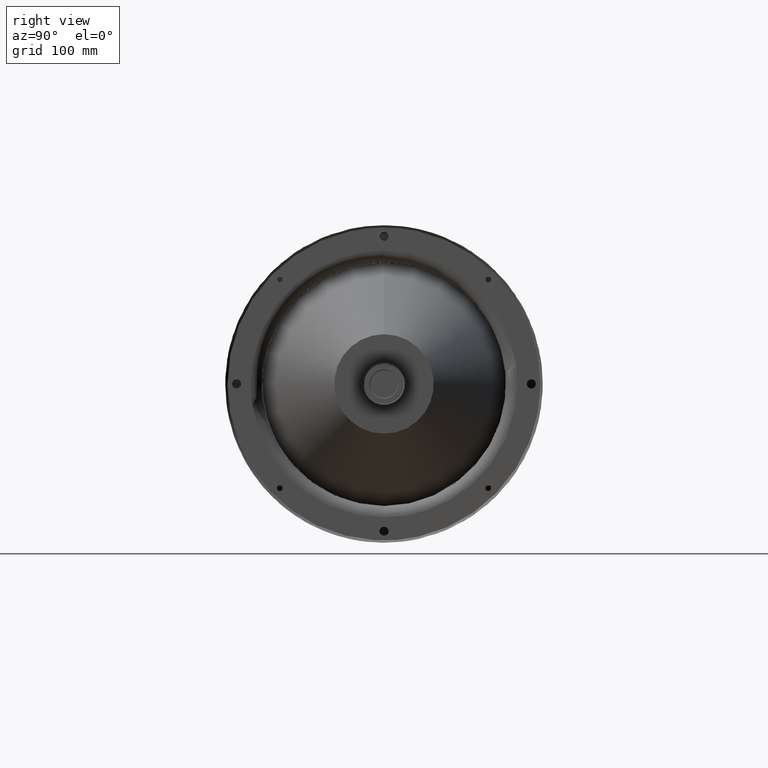
[diagram: clean part render]
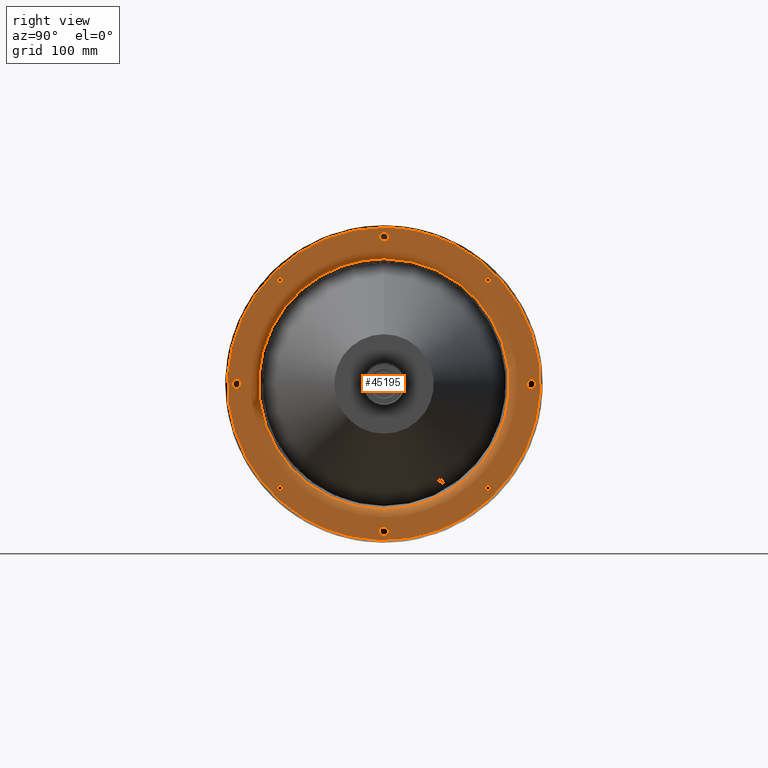
[diagram: same view with one face highlighted and labeled with its STEP entity id]
A machine part, right view. The second image highlights one B-rep face of the part: STEP entity #45195.
In plain terms, the highlighted planar face has unit normal (1, 0, 0).
Its self-contained STEP definition (entity closure, byte-faithful):
#154 = CARTESIAN_POINT ( 'NONE',  ( 190.0000000026300313, -0.5235987755984063963, -125.9999999999998863 ) ) ;
#235 = CARTESIAN_POINT ( 'NONE',  ( 190.0000000026300313, 92.57825126489817080, 94.35881324567083084 ) ) ;
#287 = CARTESIAN_POINT ( 'NONE',  ( 190.0000000026300313, -1.046991537437303332, -133.8958907066733843 ) ) ;
#417 = CARTESIAN_POINT ( 'NONE',  ( 190.0000000026300029, 125.9999999999998863, -0.5235987755983468883 ) ) ;
#424 = CARTESIAN_POINT ( 'NONE',  ( 190.0000000026300313, -131.0469915374370657, 3.895890706673525550 ) ) ;
#764 = EDGE_CURVE ( 'NONE', #3801, #38998, #8824, .T. ) ;
#931 = CARTESIAN_POINT ( 'NONE',  ( 190.0000000026300597, 3.895890706673261761, -128.9530084625629343 ) ) ;
#943 = CARTESIAN_POINT ( 'NONE',  ( 190.0000000013150157, -91.92388155396861293, 89.42388155400007577 ) ) ;
#1188 = CARTESIAN_POINT ( 'NONE',  ( 190.0000000026299745, -133.1986673695929255, -2.458186879899536770 ) ) ;
#1440 = VERTEX_POINT ( 'NONE', #14874 ) ;
#1486 = CARTESIAN_POINT ( 'NONE',  ( 190.0000000026300597, -93.46024835396234209, -89.92471444802384895 ) ) ;
#1569 = CARTESIAN_POINT ( 'NONE',  ( 190.0000000026300597, 89.73941558311437916, -90.66483410307269253 ) ) ;
#1647 = B_SPLINE_CURVE_WITH_KNOTS ( 'NONE', 3,
 ( #37824, #24832, #49502, #48475, #29771, #44598, #40688, #44853, #37051, #25083, #9279, #5386, #21200, #1486, #17298, #49764, #3505, #14931 ),
 .UNSPECIFIED., .F., .F.,
 ( 4, 2, 2, 2, 2, 2, 2, 2, 4 ),
 ( 0.000000000000000000, 0.06250000000000000000, 0.1250000000000000000, 0.1875000000000000000, 0.2500000000000000000, 0.3125000000000000000, 0.3750000000000000000, 0.4375000000000000000, 0.5000000000000000000 ),
 .UNSPECIFIED. ) ;
#1752 = CARTESIAN_POINT ( 'NONE',  ( 190.0000000026300313, -89.48894986232112103, -92.57825126486747536 ) ) ;
#1822 = CARTESIAN_POINT ( 'NONE',  ( 190.0000000026300313, 89.73941558311433653, -93.18292900492720321 ) ) ;
#1976 = CARTESIAN_POINT ( 'NONE',  ( 189.9999999990356798, -8.395799857379225628, 138.0000000009651444 ) ) ;
#1988 = CARTESIAN_POINT ( 'NONE',  ( 190.0000000026300597, 2.458186879899785016, 126.8013326304070745 ) ) ;
#2010 = CARTESIAN_POINT ( 'NONE',  ( 189.9999999990363051, 41.18304573997202311, -132.0209649742193392 ) ) ;
#2299 = CARTESIAN_POINT ( 'NONE',  ( 190.0000000002042384, 99.32104212800834375, -48.96820830360432808 ) ) ;
#2342 = CARTESIAN_POINT ( 'NONE',  ( 189.9999999990348840, -57.10609751822838831, 125.9102183373153281 ) ) ;
#2368 = EDGE_LOOP ( 'NONE', ( #47474, #19670 ) ) ;
#2494 = CARTESIAN_POINT ( 'NONE',  ( 190.0000000000339639, -48.96820830366510791, 99.32104212776881980 ) ) ;
#2549 = CARTESIAN_POINT ( 'NONE',  ( 190.0000000000753175, 14.46423734553270357, -109.7877072893656702 ) ) ;
#2589 = CARTESIAN_POINT ( 'NONE',  ( 190.0000000000000000, -140.1365520239999967, 0.000000000000000000 ) ) ;
#2749 = CARTESIAN_POINT ( 'NONE',  ( 189.9999999995181668, 30.29268456685085553, 134.6341536318181227 ) ) ;
#2841 = FACE_BOUND ( 'NONE', #9662, .T. ) ;
#2927 = ORIENTED_EDGE ( 'NONE', *, *, #27229, .F. ) ;
#3085 = EDGE_CURVE ( 'NONE', #46819, #8451, #21631, .T. ) ;
#3107 = CARTESIAN_POINT ( 'NONE',  ( 190.0000000026300313, 1.046991537437362618, 133.8958907066733843 ) ) ;
#3235 = CARTESIAN_POINT ( 'NONE',  ( 190.0000000026300029, 134.0000000000001137, 0.5235987755980997527 ) ) ;
#3260 = CARTESIAN_POINT ( 'NONE',  ( 190.0000000026300597, 3.198667369592710585, -127.5418131201003007 ) ) ;
#3505 = CARTESIAN_POINT ( 'NONE',  ( 190.0000000026300597, -92.25113078878031558, -89.42388155400412586 ) ) ;
#3583 = CARTESIAN_POINT ( 'NONE',  ( 190.0000000026300597, -94.42388155400405481, 92.25113078871761729 ) ) ;
#3703 = CARTESIAN_POINT ( 'NONE',  ( 190.0000000026300313, 89.73941558311435074, 90.66483410307270674 ) ) ;
#3801 = VERTEX_POINT ( 'NONE', #50806 ) ;
#3898 = CARTESIAN_POINT ( 'NONE',  ( 190.0000000026300313, -89.48894986232103577, 91.26951184313247722 ) ) ;
#4382 = CARTESIAN_POINT ( 'NONE',  ( 190.0000000026300313, 93.92304865999552987, 90.38751475406273528 ) ) ;
#4571 = B_SPLINE_CURVE_WITH_KNOTS ( 'NONE', 3,
 ( #45379, #34189, #50273, #25613, #42223, #10060, #2010, #5655, #30280, #14681, #10305, #18072, #46375, #26383, #41728, #10553, #17571, #49511, #30532, #6417, #37832, #29778, #22220, #13924, #50019, #37326, #6664, #22465, #5914, #10805, #41211, #21464, #38324, #2749 ),
 .UNSPECIFIED., .F., .F.,
 ( 4, 2, 2, 2, 2, 2, 2, 2, 2, 2, 2, 2, 2, 2, 2, 2, 4 ),
 ( 0.000000000000000000, 0.05838684663237411754, 0.1167736932647482351, 0.1751605398971223526, 0.2335473865294964702, 0.2919342331618705599, 0.3503210797942447052, 0.4087079264266188505, 0.4670947730589928293, 0.5254816196913669746, 0.5838684663237410088, 0.6422553129561151541, 0.7006421595884892994, 0.7590290062208634447, 0.8174158528532375900, 0.8758026994856116243, 0.9341895461179856586 ),
 .UNSPECIFIED. ) ;
#4580 = CARTESIAN_POINT ( 'NONE',  ( 190.0000000026300597, 92.25113078874889538, -94.42388155400000471 ) ) ;
#4822 = CARTESIAN_POINT ( 'NONE',  ( 190.0000000026299745, 126.1041092933266299, -1.046991537437186315 ) ) ;
#4879 = CARTESIAN_POINT ( 'NONE',  ( 190.0000000026300597, -90.38751475403766733, -93.92304865997596153 ) ) ;
#5386 = CARTESIAN_POINT ( 'NONE',  ( 190.0000000026300597, -94.10834752490136168, -90.66483410310017632 ) ) ;
#5655 = CARTESIAN_POINT ( 'NONE',  ( 189.9999999990365893, 58.03951171385765662, -125.5268637748970235 ) ) ;
#5669 = ORIENTED_EDGE ( 'NONE', *, *, #23450, .F. ) ;
#5746 = CARTESIAN_POINT ( 'NONE',  ( 189.9999999990336619, -126.5235801930850954, 55.73394935437598008 ) ) ;
#5879 = B_SPLINE_CURVE_WITH_KNOTS ( 'NONE', 3,
 ( #35988, #25037, #21150, #44031, #8469, #1188, #8732, #40641, #17000, #20384, #20646, #12846, #24006, #40127, #8206, #424, #24271, #24532 ),
 .UNSPECIFIED., .F., .F.,
 ( 4, 2, 2, 2, 2, 2, 2, 2, 4 ),
 ( 0.5000000000000000000, 0.5625000000000000000, 0.6250000000000000000, 0.6875000000000000000, 0.7500000000000000000, 0.8125000000000000000, 0.8750000000000000000, 0.9375000000000000000, 1.000000000000000000 ),
 .UNSPECIFIED. ) ;
#5904 = CARTESIAN_POINT ( 'NONE',  ( 190.0000000000633804, -28.65072382026234976, 106.9658396797609186 ) ) ;
#5914 = CARTESIAN_POINT ( 'NONE',  ( 189.9999999990372146, 86.89134624462411693, 107.5893693491208012 ) ) ;
#6003 = CARTESIAN_POINT ( 'NONE',  ( 189.9999999990336619, -121.4851425328199639, -65.99886059086483669 ) ) ;
#6155 = VERTEX_POINT ( 'NONE', #48514 ) ;
#6156 = CARTESIAN_POINT ( 'NONE',  ( 190.0000000000171383, -28.65072382004570883, -106.9658396798763675 ) ) ;
#6172 = VERTEX_POINT ( 'NONE', #41250 ) ;
#6209 = CARTESIAN_POINT ( 'NONE',  ( 190.0000000002260094, 109.7877072894778792, -14.46423734522748461 ) ) ;
#6417 = CARTESIAN_POINT ( 'NONE',  ( 189.9999999990380388, 138.1824597774091501, 5.584465866039221460 ) ) ;
#6459 = CARTESIAN_POINT ( 'NONE',  ( 190.0000000001846558, 87.85939262696450669, -67.40387200360369491 ) ) ;
#6498 = DIRECTION ( 'NONE',  ( 0.000000000000000000, 1.000000000000000000, 0.000000000000000000 ) ) ;
#6646 = CARTESIAN_POINT ( 'NONE',  ( 190.0000000026300597, -2.014475921483613430, 126.5048544465829679 ) ) ;
#6664 = CARTESIAN_POINT ( 'NONE',  ( 189.9999999990375841, 106.2113981029858962, 88.57040906619769771 ) ) ;
#6711 = CARTESIAN_POINT ( 'NONE',  ( 190.0000000001505782, 35.60483024903621185, 104.8563345572075889 ) ) ;
#6904 = CARTESIAN_POINT ( 'NONE',  ( 190.0000000000245564, -55.37714949368555750, 95.89539169204081759 ) ) ;
#7055 = CARTESIAN_POINT ( 'NONE',  ( 190.0000000026300597, -3.895890706673511783, -131.0469915374371794 ) ) ;
#7079 = CARTESIAN_POINT ( 'NONE',  ( 190.0000000026299745, -126.5048544465829679, -2.014475921483613430 ) ) ;
#7166 = CARTESIAN_POINT ( 'NONE',  ( 190.0000000026299745, -3.495145553417244422, -127.9855240785162920 ) ) ;
#7257 = EDGE_LOOP ( 'NONE', ( #33289, #15383 ) ) ;
#7263 = FACE_OUTER_BOUND ( 'NONE', #31714, .T. ) ;
#7497 = CARTESIAN_POINT ( 'NONE',  ( 190.0000000026300313, -93.46024835391216357, 89.92471444798540858 ) ) ;
#7594 = CARTESIAN_POINT ( 'NONE',  ( 190.0000000026300029, -126.5048544465828542, 2.014475921483701359 ) ) ;
#7613 = CARTESIAN_POINT ( 'NONE',  ( 190.0000000026299745, 90.66483410307276358, 89.73941558311427968 ) ) ;
#7763 = CARTESIAN_POINT ( 'NONE',  ( 190.0000000026300313, 93.46024835393727415, 93.92304865999551566 ) ) ;
#7862 = ORIENTED_EDGE ( 'NONE', *, *, #47874, .F. ) ;
#7864 = CARTESIAN_POINT ( 'NONE',  ( 190.0000000026300313, 90.66483410307269253, 94.10834752488564448 ) ) ;
#7909 = CARTESIAN_POINT ( 'NONE',  ( 189.9999999995175131, -3.162488086180769904E-13, 138.0000000009650307 ) ) ;
#7915 = CARTESIAN_POINT ( 'NONE',  ( 190.0000000026299176, 130.5235987755983729, 3.999999999999984457 ) ) ;
#7935 = CARTESIAN_POINT ( 'NONE',  ( 190.0000000026300597, -2.458186879899831645, -126.8013326304071882 ) ) ;
#7941 = CARTESIAN_POINT ( 'NONE',  ( 190.0000000026299745, 126.8013326304070745, -2.458186879899785016 ) ) ;
#8019 = CARTESIAN_POINT ( 'NONE',  ( 190.0000000026299460, 92.25113078874886696, 94.42388155400003313 ) ) ;
#8126 = ORIENTED_EDGE ( 'NONE', *, *, #9842, .F. ) ;
#8200 = CARTESIAN_POINT ( 'NONE',  ( 190.0000000026300029, 126.5048544465828542, -2.014475921483701359 ) ) ;
#8206 = CARTESIAN_POINT ( 'NONE',  ( 190.0000000026300029, -132.0144759214836085, 3.495145553417305706 ) ) ;
#8270 = AXIS2_PLACEMENT_3D ( 'NONE', #2589, #45964, #6498 ) ;
#8278 = CARTESIAN_POINT ( 'NONE',  ( 190.0000000026299745, 93.18292900492723163, 94.10834752488568711 ) ) ;
#8433 = CARTESIAN_POINT ( 'NONE',  ( 190.0000000013150157, 130.0000000000000568, 3.999999999999998224 ) ) ;
#8451 = VERTEX_POINT ( 'NONE', #9526 ) ;
#8469 = CARTESIAN_POINT ( 'NONE',  ( 190.0000000026300029, -132.4581868798997846, -3.198667369592636422 ) ) ;
#8662 = EDGE_CURVE ( 'NONE', #42163, #30939, #12093, .T. ) ;
#8732 = CARTESIAN_POINT ( 'NONE',  ( 190.0000000026300029, -133.4951455534171885, -2.014475921483454890 ) ) ;
#8781 = CARTESIAN_POINT ( 'NONE',  ( 190.0000000026299745, -90.66483410310023316, -89.73941558309851985 ) ) ;
#8824 = B_SPLINE_CURVE_WITH_KNOTS ( 'NONE', 3,
 ( #18943, #15315, #11433, #15564, #42851, #47259, #22831, #46493, #35070, #30393, #3898, #30644, #46235, #10662, #50886, #42588, #38957, #31423 ),
 .UNSPECIFIED., .F., .F.,
 ( 4, 2, 2, 2, 2, 2, 2, 2, 4 ),
 ( 0.5000000000000000000, 0.5625000000000000000, 0.6250000000000000000, 0.6875000000000000000, 0.7500000000000000000, 0.8125000000000000000, 0.8750000000000000000, 0.9375000000000000000, 1.000000000000000000 ),
 .UNSPECIFIED. ) ;
#9279 = CARTESIAN_POINT ( 'NONE',  ( 190.0000000026300313, -94.35881324567888839, -91.26951184313233512 ) ) ;
#9358 = CARTESIAN_POINT ( 'NONE',  ( 190.0000000026300597, 90.38751475406276370, -89.92471444800449376 ) ) ;
#9526 = CARTESIAN_POINT ( 'NONE',  ( 190.0000000013150157, 91.92388155399999050, -94.42388155400000471 ) ) ;
#9662 = EDGE_LOOP ( 'NONE', ( #48164, #28889 ) ) ;
#9712 = VERTEX_POINT ( 'NONE', #26624 ) ;
#9763 = VERTEX_POINT ( 'NONE', #39087 ) ;
#9794 = CARTESIAN_POINT ( 'NONE',  ( 189.9999999999263878, -109.7877072892253096, -14.46423734544980633 ) ) ;
#9803 = CARTESIAN_POINT ( 'NONE',  ( 190.0000000026300597, -89.92471444802394842, -90.38751475403755364 ) ) ;
#9842 = EDGE_CURVE ( 'NONE', #13438, #41381, #26154, .T. ) ;
#9851 = CARTESIAN_POINT ( 'NONE',  ( 190.0000000002190177, 106.9658396799592595, -28.65072382018607300 ) ) ;
#9900 = CARTESIAN_POINT ( 'NONE',  ( 190.0000000026300313, -3.895890706673232007, 131.0469915374372931 ) ) ;
#10003 = CARTESIAN_POINT ( 'NONE',  ( 190.0000000013150157, -4.000000000000000000, 130.0000000000000568 ) ) ;
#10060 = CARTESIAN_POINT ( 'NONE',  ( 189.9999999990361914, 32.43522249521374334, -134.4378473155187237 ) ) ;
#10293 = CARTESIAN_POINT ( 'NONE',  ( 189.9999999999604938, -95.89539169207010616, 55.37714949357423677 ) ) ;
#10305 = CARTESIAN_POINT ( 'NONE',  ( 189.9999999990371577, 88.57040906613629261, -106.2113981030364727 ) ) ;
#10349 = CARTESIAN_POINT ( 'NONE',  ( 190.0000000001227818, 14.46423734531042093, 109.7877072893375470 ) ) ;
#10393 = CARTESIAN_POINT ( 'NONE',  ( 189.9999999990340598, -104.0345355120692403, 91.05660259585840777 ) ) ;
#10482 = ORIENTED_EDGE ( 'NONE', *, *, #12300, .F. ) ;
#10542 = CARTESIAN_POINT ( 'NONE',  ( 189.9999999999815259, -83.24924270304020979, 73.02135593907669886 ) ) ;
#10553 = CARTESIAN_POINT ( 'NONE',  ( 189.9999999990378114, 129.8010289059469358, -47.72076428664725256 ) ) ;
#10626 = B_SPLINE_CURVE_WITH_KNOTS ( 'NONE', 3,
 ( #11818, #16214, #12330, #7166, #27907, #7935, #23734, #35716, #154, #15945, #43758, #23992, #38831, #3260, #19089, #931, #29203, #13096 ),
 .UNSPECIFIED., .F., .F.,
 ( 4, 2, 2, 2, 2, 2, 2, 2, 4 ),
 ( 0.000000000000000000, 0.06250000000000000000, 0.1250000000000000000, 0.1875000000000000000, 0.2500000000000000000, 0.3125000000000000000, 0.3750000000000000000, 0.4375000000000000000, 0.5000000000000000000 ),
 .UNSPECIFIED. ) ;
#10662 = CARTESIAN_POINT ( 'NONE',  ( 190.0000000026300597, -90.38751475403762470, 89.92471444802397684 ) ) ;
#10727 = CARTESIAN_POINT ( 'NONE',  ( 190.0000000026300313, 89.48894986232916438, 92.57825126489817080 ) ) ;
#10795 = CARTESIAN_POINT ( 'NONE',  ( 190.0000000000934222, -7.232208087953710951, 110.4999999999927383 ) ) ;
#10805 = CARTESIAN_POINT ( 'NONE',  ( 189.9999999990370156, 72.12674770916369482, 117.9970792606471406 ) ) ;
#10894 = FACE_BOUND ( 'NONE', #7257, .T. ) ;
#10902 = CARTESIAN_POINT ( 'NONE',  ( 190.0000000026300597, 4.000000000000255795, 130.5235987755982308 ) ) ;
#11035 = CARTESIAN_POINT ( 'NONE',  ( 190.0000000026300313, 3.895890706673479809, 128.9530084625627921 ) ) ;
#11220 = CARTESIAN_POINT ( 'NONE',  ( 190.0000000026300029, -127.9855240785164057, -3.495145553417058348 ) ) ;
#11326 = CARTESIAN_POINT ( 'NONE',  ( 190.0000000026300313, 92.57825126489825607, -89.48894986232923543 ) ) ;
#11433 = CARTESIAN_POINT ( 'NONE',  ( 190.0000000026300313, -91.26951184313239196, 94.35881324567905892 ) ) ;
#11451 = CARTESIAN_POINT ( 'NONE',  ( 190.0000000026300029, -3.198667369592957499, -132.4581868798997277 ) ) ;
#11542 = CARTESIAN_POINT ( 'NONE',  ( 190.0000000026299460, 132.0144759214837507, 3.495145553416965978 ) ) ;
#11552 = CARTESIAN_POINT ( 'NONE',  ( 190.0000000013150157, -4.000000000000000000, 130.0000000000000568 ) ) ;
#11592 = VERTEX_POINT ( 'NONE', #40359 ) ;
#11818 = CARTESIAN_POINT ( 'NONE',  ( 190.0000000013150157, -4.000000000000123457, -130.0000000000000000 ) ) ;
#11833 = CARTESIAN_POINT ( 'NONE',  ( 190.0000000026300313, 94.42388155400000471, -91.59663231925111404 ) ) ;
#11975 = CARTESIAN_POINT ( 'NONE',  ( 190.0000000013150157, -130.0000000000000853, -3.999999999999998224 ) ) ;
#12093 = B_SPLINE_CURVE_WITH_KNOTS ( 'NONE', 3,
 ( #30769, #46614, #11035, #46109, #45861, #1988, #26366, #21703, #37564, #26115, #42204, #6646, #22445, #34416, #27124, #39583, #47125, #11552 ),
 .UNSPECIFIED., .F., .F.,
 ( 4, 2, 2, 2, 2, 2, 2, 2, 4 ),
 ( 0.000000000000000000, 0.06250000000000000000, 0.1250000000000000000, 0.1875000000000000000, 0.2500000000000000000, 0.3125000000000000000, 0.3750000000000000000, 0.4375000000000000000, 0.5000000000000000000 ),
 .UNSPECIFIED. ) ;
#12151 = CARTESIAN_POINT ( 'NONE',  ( 190.0000000026300313, 94.42388155400003313, 92.25113078874898065 ) ) ;
#12300 = EDGE_CURVE ( 'NONE', #46881, #50496, #22805, .T. ) ;
#12330 = CARTESIAN_POINT ( 'NONE',  ( 190.0000000026300313, -3.895890706673495796, -128.9530084625628206 ) ) ;
#12335 = CARTESIAN_POINT ( 'NONE',  ( 190.0000000026300029, 127.5418131201002154, -3.198667369592884668 ) ) ;
#12412 = CARTESIAN_POINT ( 'NONE',  ( 190.0000000026300597, 93.92304865999547303, 93.46024835393733099 ) ) ;
#12551 = CARTESIAN_POINT ( 'NONE',  ( 189.9999999990361914, 20.36052258736062370, 136.8688824188210447 ) ) ;
#12645 = CARTESIAN_POINT ( 'NONE',  ( 190.0000000026300597, -89.73941558309863353, -93.18292900489964836 ) ) ;
#12660 = CARTESIAN_POINT ( 'NONE',  ( 190.0000000026300597, 94.35881324567084505, 92.57825126489822765 ) ) ;
#12689 = CARTESIAN_POINT ( 'NONE',  ( 190.0000000000516138, -2.882480042511756240E-13, 110.5000000000000000 ) ) ;
#12846 = CARTESIAN_POINT ( 'NONE',  ( 190.0000000026299745, -133.4951455534170748, 2.014475921483859455 ) ) ;
#13096 = CARTESIAN_POINT ( 'NONE',  ( 190.0000000013150157, 4.000000000000000000, -130.0000000000000000 ) ) ;
#13157 = CARTESIAN_POINT ( 'NONE',  ( 190.0000000026300313, -89.92471444798533753, -93.46024835391200725 ) ) ;
#13234 = CARTESIAN_POINT ( 'NONE',  ( 190.0000000026300597, 89.48894986232917859, -92.57825126489814238 ) ) ;
#13438 = VERTEX_POINT ( 'NONE', #29880 ) ;
#13508 = CARTESIAN_POINT ( 'NONE',  ( 189.9999999990335482, -128.5901404036160613, -50.78449809233493539 ) ) ;
#13746 = B_SPLINE_CURVE_WITH_KNOTS ( 'NONE', 3,
 ( #40694, #44347, #32902, #8781, #24581, #9803, #28748, #45117, #48223, #16529, #1752, #12645, #13157, #4879, #33430, #49249, #45377, #36549 ),
 .UNSPECIFIED., .F., .F.,
 ( 4, 2, 2, 2, 2, 2, 2, 2, 4 ),
 ( 0.5000000000000000000, 0.5625000000000000000, 0.6250000000000000000, 0.6875000000000000000, 0.7500000000000000000, 0.8125000000000000000, 0.8750000000000000000, 0.9375000000000000000, 1.000000000000000000 ),
 .UNSPECIFIED. ) ;
#13762 = CARTESIAN_POINT ( 'NONE',  ( 189.9999999990347703, -64.67429207048847672, 122.1954393612668497 ) ) ;
#13913 = CARTESIAN_POINT ( 'NONE',  ( 189.9999999999617160, -73.02135593899383537, -83.24924270318048514 ) ) ;
#13924 = CARTESIAN_POINT ( 'NONE',  ( 189.9999999990378114, 125.5268637748630169, 58.03951171392965591 ) ) ;
#13967 = CARTESIAN_POINT ( 'NONE',  ( 190.0000000002221441, 95.89539169218123504, 55.37714949376840678 ) ) ;
#14010 = CARTESIAN_POINT ( 'NONE',  ( 189.9999999990338040, -114.3059788613042826, 77.77295578844349677 ) ) ;
#14015 = CARTESIAN_POINT ( 'NONE',  ( 190.0000000026300313, -0.5235987755980997527, 134.0000000000001137 ) ) ;
#14162 = CARTESIAN_POINT ( 'NONE',  ( 189.9999999999911608, -48.96820830346394615, -99.32104212792548026 ) ) ;
#14218 = CARTESIAN_POINT ( 'NONE',  ( 190.0000000002137881, 87.85939262682802564, 67.40387200372416032 ) ) ;
#14258 = PLANE ( 'NONE',  #8270 ) ;
#14264 = CARTESIAN_POINT ( 'NONE',  ( 189.9999999990333777, -137.0410408681920842, -18.28230218748865354 ) ) ;
#14681 = CARTESIAN_POINT ( 'NONE',  ( 189.9999999990369304, 81.41337504626933708, -111.7919532556791040 ) ) ;
#14767 = FACE_BOUND ( 'NONE', #27232, .T. ) ;
#14858 = CARTESIAN_POINT ( 'NONE',  ( 190.0000000013150157, 91.92388155400001892, 89.42388155399996208 ) ) ;
#14874 = CARTESIAN_POINT ( 'NONE',  ( 190.0000000013150157, 129.9999999999999432, -4.000000000000121680 ) ) ;
#14931 = CARTESIAN_POINT ( 'NONE',  ( 190.0000000013150157, -91.92388155403138228, -89.42388155399999050 ) ) ;
#15094 = CARTESIAN_POINT ( 'NONE',  ( 190.0000000026299176, -129.4764012244016556, 4.000000000000230926 ) ) ;
#15315 = CARTESIAN_POINT ( 'NONE',  ( 190.0000000026299460, -91.59663231928246319, 94.42388155400416849 ) ) ;
#15333 = CARTESIAN_POINT ( 'NONE',  ( 190.0000000026300597, 1.046991537436998243, -133.8958907066733843 ) ) ;
#15383 = ORIENTED_EDGE ( 'NONE', *, *, #25272, .F. ) ;
#15464 = CARTESIAN_POINT ( 'NONE',  ( 190.0000000026299460, 92.25113078874896644, -89.42388155400001892 ) ) ;
#15516 = CARTESIAN_POINT ( 'NONE',  ( 190.0000000026300597, -92.25113078878031558, 94.42388155399594041 ) ) ;
#15564 = CARTESIAN_POINT ( 'NONE',  ( 190.0000000026299745, -90.66483410310017632, 94.10834752490148958 ) ) ;
#15582 = CARTESIAN_POINT ( 'NONE',  ( 190.0000000026300313, 3.495145553416996620, -132.0144759214836938 ) ) ;
#15779 = CARTESIAN_POINT ( 'NONE',  ( 190.0000000026300597, 92.57825126489822765, 89.48894986232920701 ) ) ;
#15853 = B_SPLINE_CURVE_WITH_KNOTS ( 'NONE', 3,
 ( #40379, #32590, #43505, #36240, #12335, #7941, #8200, #4822, #417, #19857, #48166, #16737, #20116, #44285, #27911, #44025, #23997, #47396 ),
 .UNSPECIFIED., .F., .F.,
 ( 4, 2, 2, 2, 2, 2, 2, 2, 4 ),
 ( 0.000000000000000000, 0.06250000000000000000, 0.1250000000000000000, 0.1875000000000000000, 0.2500000000000000000, 0.3125000000000000000, 0.3750000000000000000, 0.4375000000000000000, 0.5000000000000000000 ),
 .UNSPECIFIED. ) ;
#15926 = CARTESIAN_POINT ( 'NONE',  ( 190.0000000026300029, 132.0144759214836085, -3.495145553417305706 ) ) ;
#15945 = CARTESIAN_POINT ( 'NONE',  ( 190.0000000026300597, 0.5235987755982223213, -125.9999999999998579 ) ) ;
#16027 = CARTESIAN_POINT ( 'NONE',  ( 190.0000000026300597, 92.25113078874896644, 89.42388155399997629 ) ) ;
#16191 = CARTESIAN_POINT ( 'NONE',  ( 190.0000000026300029, 133.1986673695927834, -2.458186879899929345 ) ) ;
#16214 = CARTESIAN_POINT ( 'NONE',  ( 190.0000000026299460, -4.000000000000238920, -129.4764012244016840 ) ) ;
#16433 = EDGE_CURVE ( 'NONE', #6155, #39584, #13746, .T. ) ;
#16529 = CARTESIAN_POINT ( 'NONE',  ( 190.0000000026300597, -89.42388155399598304, -92.25113078871741834 ) ) ;
#16547 = CARTESIAN_POINT ( 'NONE',  ( 190.0000000026300597, 93.46024835393733099, 89.92471444800452218 ) ) ;
#16553 = VERTEX_POINT ( 'NONE', #37579 ) ;
#16611 = CARTESIAN_POINT ( 'NONE',  ( 190.0000000026300313, 89.48894986232923543, -91.26951184310173915 ) ) ;
#16728 = EDGE_CURVE ( 'NONE', #41381, #13438, #10626, .T. ) ;
#16737 = CARTESIAN_POINT ( 'NONE',  ( 190.0000000026299745, 126.5048544465829679, 2.014475921483613430 ) ) ;
#17000 = CARTESIAN_POINT ( 'NONE',  ( 190.0000000026300029, -134.0000000000001137, -0.5235987755980997527 ) ) ;
#17125 = CARTESIAN_POINT ( 'NONE',  ( 190.0000000013150157, 91.92388155399999050, -94.42388155400000471 ) ) ;
#17138 = CARTESIAN_POINT ( 'NONE',  ( 189.9999999995181668, 30.29268456685085553, 134.6341536318181227 ) ) ;
#17298 = CARTESIAN_POINT ( 'NONE',  ( 190.0000000026300313, -93.18292900495463016, -89.73941558313018163 ) ) ;
#17571 = CARTESIAN_POINT ( 'NONE',  ( 189.9999999990378967, 132.6514948811476700, -39.10446719929930026 ) ) ;
#17615 = CARTESIAN_POINT ( 'NONE',  ( 190.0000000002146976, 104.8563345573479211, -35.60483024895327020 ) ) ;
#17642 = CARTESIAN_POINT ( 'NONE',  ( 190.0000000026300313, 89.92471444800456482, -90.38751475406269265 ) ) ;
#17658 = CARTESIAN_POINT ( 'NONE',  ( 189.9999999990345714, -61.94684470532344989, -123.6004768864833210 ) ) ;
#17911 = CARTESIAN_POINT ( 'NONE',  ( 190.0000000026300597, -2.458186879899536770, 133.1986673695929255 ) ) ;
#18072 = CARTESIAN_POINT ( 'NONE',  ( 189.9999999990373567, 101.6585680327975609, -93.76094066649191916 ) ) ;
#18111 = CARTESIAN_POINT ( 'NONE',  ( 190.0000000002285105, 110.5000000001476650, -7.232208087870259483 ) ) ;
#18156 = CARTESIAN_POINT ( 'NONE',  ( 189.9999999990336050, -129.6853881717120203, 47.91857208081814434 ) ) ;
#18160 = CARTESIAN_POINT ( 'NONE',  ( 190.0000000026299460, -3.999999999999984457, 130.5235987755983729 ) ) ;
#18362 = CARTESIAN_POINT ( 'NONE',  ( 190.0000000001130616, 7.232208087953195808, 110.5000000000072902 ) ) ;
#18553 = CARTESIAN_POINT ( 'NONE',  ( 190.0000000000081002, -35.60483024881288827, -104.8563345572650150 ) ) ;
#18615 = CARTESIAN_POINT ( 'NONE',  ( 190.0000000001341505, 55.37714949390879582, -95.89539169209825786 ) ) ;
#18658 = FACE_BOUND ( 'NONE', #26213, .T. ) ;
#18690 = B_SPLINE_CURVE_WITH_KNOTS ( 'NONE', 3,
 ( #23642, #15094, #19759, #18989, #42633, #38741, #7594, #23382, #51183, #35115, #47049, #7079, #30951, #39251, #11220, #27046, #42895, #11975 ),
 .UNSPECIFIED., .F., .F.,
 ( 4, 2, 2, 2, 2, 2, 2, 2, 4 ),
 ( 0.000000000000000000, 0.06250000000000000000, 0.1250000000000000000, 0.1875000000000000000, 0.2500000000000000000, 0.3125000000000000000, 0.3750000000000000000, 0.4375000000000000000, 0.5000000000000000000 ),
 .UNSPECIFIED. ) ;
#18923 = CARTESIAN_POINT ( 'NONE',  ( 190.0000000026300313, 3.495145553417305706, 132.0144759214836085 ) ) ;
#18943 = CARTESIAN_POINT ( 'NONE',  ( 190.0000000013150157, -91.92388155403138228, 94.42388155400003313 ) ) ;
#18963 = CARTESIAN_POINT ( 'NONE',  ( 190.0000000026300597, -2.014475921483806165, -133.4951455534171032 ) ) ;
#18989 = CARTESIAN_POINT ( 'NONE',  ( 190.0000000026299460, -127.9855240785162636, 3.495145553417212891 ) ) ;
#19089 = CARTESIAN_POINT ( 'NONE',  ( 190.0000000026300313, 3.495145553417027706, -127.9855240785163204 ) ) ;
#19223 = CARTESIAN_POINT ( 'NONE',  ( 190.0000000026300597, 2.014475921483508181, -133.4951455534171885 ) ) ;
#19323 = CARTESIAN_POINT ( 'NONE',  ( 190.0000000026299745, 134.0000000000000853, -0.5235987755985289649 ) ) ;
#19363 = CARTESIAN_POINT ( 'NONE',  ( 190.0000000026300313, 93.92304865999544461, -93.46024835393730257 ) ) ;
#19413 = CARTESIAN_POINT ( 'NONE',  ( 190.0000000026300313, -94.35881324567895945, 92.57825126486771694 ) ) ;
#19523 = CARTESIAN_POINT ( 'NONE',  ( 190.0000000013150157, -4.000000000000123457, -130.0000000000000000 ) ) ;
#19670 = ORIENTED_EDGE ( 'NONE', *, *, #38293, .F. ) ;
#19759 = CARTESIAN_POINT ( 'NONE',  ( 190.0000000026300029, -128.9530084625627921, 3.895890706673479809 ) ) ;
#19779 = CARTESIAN_POINT ( 'NONE',  ( 190.0000000013150157, 91.92388155399999050, 94.42388155400003313 ) ) ;
#19857 = CARTESIAN_POINT ( 'NONE',  ( 190.0000000026299745, 125.9999999999998579, 0.5235987755982818292 ) ) ;
#20092 = CARTESIAN_POINT ( 'NONE',  ( 190.0000000026299745, 132.4581868798996993, -3.198667369592995247 ) ) ;
#20116 = CARTESIAN_POINT ( 'NONE',  ( 190.0000000026300029, 126.8013326304072450, 2.458186879899681987 ) ) ;
#20191 = EDGE_LOOP ( 'NONE', ( #2927, #44298 ) ) ;
#20194 = CARTESIAN_POINT ( 'NONE',  ( 190.0000000013150157, 91.92388155400001892, 89.42388155399996208 ) ) ;
#20384 = CARTESIAN_POINT ( 'NONE',  ( 190.0000000026299745, -134.0000000000000853, 0.5235987755985289649 ) ) ;
#20624 = CARTESIAN_POINT ( 'NONE',  ( 190.0000000013150157, 4.000000000000123457, 129.9999999999999432 ) ) ;
#20646 = CARTESIAN_POINT ( 'NONE',  ( 190.0000000026300029, -133.8958907066733843, 1.046991537437362618 ) ) ;
#21150 = CARTESIAN_POINT ( 'NONE',  ( 190.0000000026300029, -131.0469915374372931, -3.895890706673232007 ) ) ;
#21200 = CARTESIAN_POINT ( 'NONE',  ( 190.0000000026300313, -93.92304866001467190, -90.38751475408780323 ) ) ;
#21464 = CARTESIAN_POINT ( 'NONE',  ( 189.9999999990366462, 47.72076428657412350, 129.8010289059766933 ) ) ;
#21513 = CARTESIAN_POINT ( 'NONE',  ( 190.0000000001902549, 67.40387200368664367, 87.85939262682414608 ) ) ;
#21541 = CARTESIAN_POINT ( 'NONE',  ( 190.0000000026299745, 90.66483410307269253, -94.10834752488560184 ) ) ;
#21558 = CARTESIAN_POINT ( 'NONE',  ( 189.9999999990334629, -131.4464315317808314, -42.85236391464225392 ) ) ;
#21631 = B_SPLINE_CURVE_WITH_KNOTS ( 'NONE', 3,
 ( #38338, #15464, #11326, #47154, #24275, #31577, #43258, #43773, #11833, #31836, #31066, #39613, #19363, #27153, #27666, #47405, #4580, #35228 ),
 .UNSPECIFIED., .F., .F.,
 ( 4, 2, 2, 2, 2, 2, 2, 2, 4 ),
 ( 0.5000000000000000000, 0.5625000000000000000, 0.6250000000000000000, 0.6875000000000000000, 0.7500000000000000000, 0.8125000000000000000, 0.8750000000000000000, 0.9375000000000000000, 1.000000000000000000 ),
 .UNSPECIFIED. ) ;
#21703 = CARTESIAN_POINT ( 'NONE',  ( 190.0000000026300597, 1.046991537437186315, 126.1041092933266299 ) ) ;
#21709 = CARTESIAN_POINT ( 'NONE',  ( 190.0000000000516138, -2.882480042511756240E-13, 110.5000000000000000 ) ) ;
#21811 = CARTESIAN_POINT ( 'NONE',  ( 189.9999999990349409, -38.48370717814875519, -132.7911658859048316 ) ) ;
#22017 = CARTESIAN_POINT ( 'NONE',  ( 190.0000000001982130, 95.89539169229333027, -55.37714949363171968 ) ) ;
#22048 = ORIENTED_EDGE ( 'NONE', *, *, #764, .F. ) ;
#22058 = CARTESIAN_POINT ( 'NONE',  ( 189.9999999990341450, -98.29110751325220008, 97.22832735026528894 ) ) ;
#22220 = CARTESIAN_POINT ( 'NONE',  ( 189.9999999990379820, 132.0209649741945270, 41.18304574004758933 ) ) ;
#22264 = CARTESIAN_POINT ( 'NONE',  ( 190.0000000001246860, 48.96820830388833201, -99.32104212782628849 ) ) ;
#22445 = CARTESIAN_POINT ( 'NONE',  ( 190.0000000026300313, -2.458186879899681987, 126.8013326304072450 ) ) ;
#22452 = CARTESIAN_POINT ( 'NONE',  ( 190.0000000000358966, -14.46423734508711156, -109.7877072893949446 ) ) ;
#22465 = CARTESIAN_POINT ( 'NONE',  ( 189.9999999990373567, 93.76094066643419467, 101.6585680328522159 ) ) ;
#22513 = CARTESIAN_POINT ( 'NONE',  ( 190.0000000001675744, 48.96820830368723421, 99.32104212786798314 ) ) ;
#22608 = CARTESIAN_POINT ( 'NONE',  ( 190.0000000013150157, -91.92388155396861293, -94.42388155399989103 ) ) ;
#22703 = CARTESIAN_POINT ( 'NONE',  ( 189.9999999999830891, -55.37714949349133775, -95.89539169221042414 ) ) ;
#22779 = CARTESIAN_POINT ( 'NONE',  ( 190.0000000026300597, -94.10834752490141852, 93.18292900489988995 ) ) ;
#22805 = B_SPLINE_CURVE_WITH_KNOTS ( 'NONE', 3,
 ( #37553, #1976, #25844, #42059, #45210, #2342, #13762, #34034, #45967, #22058, #10393, #14010, #34529, #5746, #18156, #33520, #37917, #33780, #49856, #14264, #38419, #21558, #13508, #6003, #41562, #41815, #49340, #30118, #49599, #37419, #17658, #29611, #21811, #29354 ),
 .UNSPECIFIED., .F., .F.,
 ( 4, 2, 2, 2, 2, 2, 2, 2, 2, 2, 2, 2, 2, 2, 2, 2, 4 ),
 ( 0.000000000000000000, 0.06250000000000008327, 0.1250000000000001665, 0.1875000000000002498, 0.2500000000000003331, 0.3125000000000004441, 0.3750000000000004996, 0.4375000000000004441, 0.5000000000000004441, 0.5625000000000004441, 0.6250000000000003331, 0.6875000000000003331, 0.7500000000000003331, 0.8125000000000003331, 0.8750000000000002220, 0.9375000000000001110, 1.000000000000000000 ),
 .UNSPECIFIED. ) ;
#22831 = CARTESIAN_POINT ( 'NONE',  ( 190.0000000026300313, -89.73941558313022426, 93.18292900495477227 ) ) ;
#22893 = CARTESIAN_POINT ( 'NONE',  ( 190.0000000026300597, 89.48894986232919280, 91.26951184310173915 ) ) ;
#22986 = CARTESIAN_POINT ( 'NONE',  ( 190.0000000000277396, 2.252650009324170087E-10, -110.5000000000287201 ) ) ;
#23034 = CARTESIAN_POINT ( 'NONE',  ( 190.0000000026300597, -93.92304865997611785, 90.38751475403772417 ) ) ;
#23062 = FACE_BOUND ( 'NONE', #2368, .T. ) ;
#23287 = CARTESIAN_POINT ( 'NONE',  ( 190.0000000026300597, -94.35881324566251749, 91.26951184307131371 ) ) ;
#23382 = CARTESIAN_POINT ( 'NONE',  ( 190.0000000026299745, -126.1041092933266299, 1.046991537437186315 ) ) ;
#23404 = CARTESIAN_POINT ( 'NONE',  ( 190.0000000026300313, 90.38751475406273528, 89.92471444800447955 ) ) ;
#23450 = EDGE_CURVE ( 'NONE', #39584, #6155, #1647, .T. ) ;
#23565 = CARTESIAN_POINT ( 'NONE',  ( 190.0000000026300597, 94.10834752488567290, 90.66483410307276358 ) ) ;
#23642 = CARTESIAN_POINT ( 'NONE',  ( 190.0000000013150157, -129.9999999999999147, 4.000000000000121680 ) ) ;
#23662 = CARTESIAN_POINT ( 'NONE',  ( 190.0000000026300597, 91.26951184310176757, 94.35881324567084505 ) ) ;
#23734 = CARTESIAN_POINT ( 'NONE',  ( 190.0000000026300313, -2.014475921483755094, -126.5048544465828542 ) ) ;
#23911 = EDGE_CURVE ( 'NONE', #9712, #11592, #5879, .T. ) ;
#23992 = CARTESIAN_POINT ( 'NONE',  ( 190.0000000026300597, 2.014475921483561027, -126.5048544465829110 ) ) ;
#23997 = CARTESIAN_POINT ( 'NONE',  ( 190.0000000026300313, 129.4764012244017692, 4.000000000000007994 ) ) ;
#24006 = CARTESIAN_POINT ( 'NONE',  ( 190.0000000026300029, -133.1986673695927834, 2.458186879899929345 ) ) ;
#24108 = CARTESIAN_POINT ( 'NONE',  ( 190.0000000013150157, 91.92388155400003313, -89.42388155399999050 ) ) ;
#24253 = EDGE_CURVE ( 'NONE', #8451, #46819, #25705, .T. ) ;
#24271 = CARTESIAN_POINT ( 'NONE',  ( 190.0000000026300313, -130.5235987755982308, 4.000000000000255795 ) ) ;
#24275 = CARTESIAN_POINT ( 'NONE',  ( 190.0000000026300313, 93.46024835393731678, -89.92471444800456482 ) ) ;
#24532 = CARTESIAN_POINT ( 'NONE',  ( 190.0000000013150157, -129.9999999999999147, 4.000000000000121680 ) ) ;
#24581 = CARTESIAN_POINT ( 'NONE',  ( 190.0000000026300313, -90.38751475408791691, -89.92471444798525226 ) ) ;
#24832 = CARTESIAN_POINT ( 'NONE',  ( 190.0000000026299460, -92.25113078871750361, -94.42388155400391270 ) ) ;
#24852 = ORIENTED_EDGE ( 'NONE', *, *, #49321, .F. ) ;
#25037 = CARTESIAN_POINT ( 'NONE',  ( 190.0000000026299176, -130.5235987755983729, -3.999999999999984457 ) ) ;
#25083 = CARTESIAN_POINT ( 'NONE',  ( 190.0000000026300597, -94.42388155400398375, -91.59663231928239213 ) ) ;
#25162 = CARTESIAN_POINT ( 'NONE',  ( 190.0000000026300597, 91.59663231925112825, -89.42388155399999050 ) ) ;
#25272 = EDGE_CURVE ( 'NONE', #11592, #9712, #18690, .T. ) ;
#25613 = CARTESIAN_POINT ( 'NONE',  ( 189.9999999990356798, 5.584465865960308584, -138.1824597774146923 ) ) ;
#25660 = CARTESIAN_POINT ( 'NONE',  ( 190.0000000001770957, 83.24924270326341968, -73.02135593913419598 ) ) ;
#25705 = B_SPLINE_CURVE_WITH_KNOTS ( 'NONE', 3,
 ( #17125, #32979, #48803, #21541, #37403, #44421, #1822, #13234, #29079, #44932, #16611, #1569, #17642, #9358, #33503, #40260, #25162, #41023 ),
 .UNSPECIFIED., .F., .F.,
 ( 4, 2, 2, 2, 2, 2, 2, 2, 4 ),
 ( 0.000000000000000000, 0.06250000000000000000, 0.1250000000000000000, 0.1875000000000000000, 0.2500000000000000000, 0.3125000000000000000, 0.3750000000000000000, 0.4375000000000000000, 0.5000000000000000000 ),
 .UNSPECIFIED. ) ;
#25733 = ORIENTED_EDGE ( 'NONE', *, *, #3085, .F. ) ;
#25829 = ORIENTED_EDGE ( 'NONE', *, *, #24253, .F. ) ;
#25844 = CARTESIAN_POINT ( 'NONE',  ( 189.9999999990355377, -16.79144467652469430, 137.2316903677383380 ) ) ;
#25862 = CARTESIAN_POINT ( 'NONE',  ( 189.9999999999270415, -110.4999999999097611, -7.232208088094029819 ) ) ;
#25919 = CARTESIAN_POINT ( 'NONE',  ( 190.0000000001415117, 28.65072382026899689, 106.9658396798189273 ) ) ;
#26115 = CARTESIAN_POINT ( 'NONE',  ( 190.0000000026300597, -0.5235987755982818292, 125.9999999999998579 ) ) ;
#26121 = CARTESIAN_POINT ( 'NONE',  ( 190.0000000000063380, -67.40387200364129683, 87.85939262668762240 ) ) ;
#26154 = B_SPLINE_CURVE_WITH_KNOTS ( 'NONE', 3,
 ( #26514, #39478, #35854, #15582, #27788, #34832, #19223, #15333, #35087, #43380, #287, #18963, #47276, #11451, #39736, #7055, #47025, #43636 ),
 .UNSPECIFIED., .F., .F.,
 ( 4, 2, 2, 2, 2, 2, 2, 2, 4 ),
 ( 0.5000000000000000000, 0.5625000000000000000, 0.6250000000000000000, 0.6875000000000000000, 0.7500000000000000000, 0.8125000000000000000, 0.8750000000000000000, 0.9375000000000000000, 1.000000000000000000 ),
 .UNSPECIFIED. ) ;
#26173 = CARTESIAN_POINT ( 'NONE',  ( 190.0000000001052172, 35.60483024924849360, -104.8563345571929375 ) ) ;
#26213 = EDGE_LOOP ( 'NONE', ( #25733, #25829 ) ) ;
#26222 = CARTESIAN_POINT ( 'NONE',  ( 190.0000000026300313, 2.458186879899929345, 133.1986673695927834 ) ) ;
#26366 = CARTESIAN_POINT ( 'NONE',  ( 190.0000000026300313, 2.014475921483701359, 126.5048544465828542 ) ) ;
#26373 = CARTESIAN_POINT ( 'NONE',  ( 189.9999999999976410, -73.02135593916248979, 83.24924270297516671 ) ) ;
#26383 = CARTESIAN_POINT ( 'NONE',  ( 189.9999999990376125, 117.9970792606042522, -72.12674770923027268 ) ) ;
#26427 = CARTESIAN_POINT ( 'NONE',  ( 190.0000000002316654, 110.5000000001330136, 7.232208088036498950 ) ) ;
#26477 = CARTESIAN_POINT ( 'NONE',  ( 190.0000000026300597, 3.895890706673525550, 131.0469915374370657 ) ) ;
#26514 = CARTESIAN_POINT ( 'NONE',  ( 190.0000000013150157, 4.000000000000000000, -130.0000000000000000 ) ) ;
#26624 = CARTESIAN_POINT ( 'NONE',  ( 190.0000000013150157, -130.0000000000000853, -3.999999999999998224 ) ) ;
#26700 = ORIENTED_EDGE ( 'NONE', *, *, #32860, .F. ) ;
#26730 = CARTESIAN_POINT ( 'NONE',  ( 190.0000000013150157, 4.000000000000123457, 129.9999999999999432 ) ) ;
#26955 = CARTESIAN_POINT ( 'NONE',  ( 190.0000000026300313, -92.57825126486761746, 89.48894986232114945 ) ) ;
#27046 = CARTESIAN_POINT ( 'NONE',  ( 190.0000000026300313, -128.9530084625629343, -3.895890706673278636 ) ) ;
#27124 = CARTESIAN_POINT ( 'NONE',  ( 190.0000000026300313, -3.495145553417058348, 127.9855240785164057 ) ) ;
#27153 = CARTESIAN_POINT ( 'NONE',  ( 190.0000000026300597, 93.46024835393723151, -93.92304865999550145 ) ) ;
#27229 = EDGE_CURVE ( 'NONE', #16553, #28565, #46542, .T. ) ;
#27232 = EDGE_LOOP ( 'NONE', ( #40432, #26700 ) ) ;
#27375 = CARTESIAN_POINT ( 'NONE',  ( 190.0000000026300029, 133.4951455534171885, 2.014475921483454890 ) ) ;
#27540 = VERTEX_POINT ( 'NONE', #22986 ) ;
#27628 = CARTESIAN_POINT ( 'NONE',  ( 190.0000000013150157, 129.9999999999999432, -4.000000000000121680 ) ) ;
#27666 = CARTESIAN_POINT ( 'NONE',  ( 190.0000000026300313, 93.18292900492718900, -94.10834752488567290 ) ) ;
#27788 = CARTESIAN_POINT ( 'NONE',  ( 190.0000000026300029, 3.198667369592673726, -132.4581868798997561 ) ) ;
#27907 = CARTESIAN_POINT ( 'NONE',  ( 190.0000000026300313, -3.198667369592921084, -127.5418131201003007 ) ) ;
#27911 = CARTESIAN_POINT ( 'NONE',  ( 190.0000000026300029, 127.9855240785164057, 3.495145553417058348 ) ) ;
#28022 = VERTEX_POINT ( 'NONE', #17138 ) ;
#28071 = B_SPLINE_CURVE_WITH_KNOTS ( 'NONE', 3,
 ( #8433, #7915, #47624, #11542, #38807, #47881, #27375, #42962, #3235, #19323, #47370, #46864, #16191, #20092, #15926, #43478, #35954, #27628 ),
 .UNSPECIFIED., .F., .F.,
 ( 4, 2, 2, 2, 2, 2, 2, 2, 4 ),
 ( 0.5000000000000000000, 0.5625000000000000000, 0.6250000000000000000, 0.6875000000000000000, 0.7500000000000000000, 0.8125000000000000000, 0.8750000000000000000, 0.9375000000000000000, 1.000000000000000000 ),
 .UNSPECIFIED. ) ;
#28074 = B_SPLINE_CURVE_WITH_KNOTS ( 'NONE', 3,
 ( #12689, #18362, #10349, #25919, #6711, #22513, #30073, #21513, #33737, #50068, #14218, #13967, #45918, #29825, #38374, #42016, #26427, #18111, #6209, #9851, #17615, #2299, #22017, #6459, #25660, #38122, #34482, #18615, #22264, #26173, #42274, #2549, #33987, #45673 ),
 .UNSPECIFIED., .F., .F.,
 ( 4, 2, 2, 2, 2, 2, 2, 2, 2, 2, 2, 2, 2, 2, 2, 2, 4 ),
 ( 0.000000000000000000, 0.03125000000000000000, 0.06250000000000000000, 0.09375000000000000000, 0.1250000000000000000, 0.1562500000000000000, 0.1875000000000000000, 0.2187500000000000000, 0.2500000000000000000, 0.2812500000000000000, 0.3125000000000000000, 0.3437500000000000000, 0.3750000000000000000, 0.4062500000000000000, 0.4375000000000000000, 0.4687500000000000000, 0.5000000000000000000 ),
 .UNSPECIFIED. ) ;
#28523 = EDGE_CURVE ( 'NONE', #30939, #42163, #49474, .T. ) ;
#28565 = VERTEX_POINT ( 'NONE', #38422 ) ;
#28748 = CARTESIAN_POINT ( 'NONE',  ( 190.0000000026300313, -89.73941558313026690, -90.66483410304526558 ) ) ;
#28889 = ORIENTED_EDGE ( 'NONE', *, *, #8662, .F. ) ;
#29079 = CARTESIAN_POINT ( 'NONE',  ( 190.0000000026300313, 89.42388155399999050, -92.25113078874888117 ) ) ;
#29203 = CARTESIAN_POINT ( 'NONE',  ( 190.0000000026300597, 4.000000000000000888, -129.4764012244017408 ) ) ;
#29270 = EDGE_CURVE ( 'NONE', #28565, #16553, #34002, .T. ) ;
#29354 = CARTESIAN_POINT ( 'NONE',  ( 189.9999999993564757, -30.29268292704670174, -134.6341463424026301 ) ) ;
#29513 = CARTESIAN_POINT ( 'NONE',  ( 189.9999999999332374, -99.32104212768589946, -48.96820830380546141 ) ) ;
#29551 = ORIENTED_EDGE ( 'NONE', *, *, #16728, .F. ) ;
#29611 = CARTESIAN_POINT ( 'NONE',  ( 189.9999999990347987, -46.50592683831395391, -130.1986490883098213 ) ) ;
#29746 = EDGE_CURVE ( 'NONE', #27540, #6172, #35825, .T. ) ;
#29768 = CARTESIAN_POINT ( 'NONE',  ( 189.9999999999683382, -67.40387200346333429, -87.85939262688158635 ) ) ;
#29771 = CARTESIAN_POINT ( 'NONE',  ( 190.0000000026300313, -93.46024835391213514, -93.92304866001454400 ) ) ;
#29778 = CARTESIAN_POINT ( 'NONE',  ( 189.9999999990379820, 134.4378473154985443, 32.43522249529070223 ) ) ;
#29825 = CARTESIAN_POINT ( 'NONE',  ( 190.0000000002301022, 104.8563345572758720, 35.60483024910809746 ) ) ;
#29880 = CARTESIAN_POINT ( 'NONE',  ( 190.0000000013150157, 4.000000000000000000, -130.0000000000000000 ) ) ;
#30015 = CARTESIAN_POINT ( 'NONE',  ( 189.9999999999396039, -106.9658396797360780, 28.65072382012859720 ) ) ;
#30073 = CARTESIAN_POINT ( 'NONE',  ( 190.0000000001755893, 55.37714949371464002, 95.89539169215296965 ) ) ;
#30118 = CARTESIAN_POINT ( 'NONE',  ( 189.9999999990340882, -89.92025944075943755, -105.0182669711239640 ) ) ;
#30122 = CARTESIAN_POINT ( 'NONE',  ( 190.0000000026300597, -1.046991537436939401, 133.8958907066733843 ) ) ;
#30280 = CARTESIAN_POINT ( 'NONE',  ( 189.9999999990367314, 66.14773763364615888, -121.4498054963236910 ) ) ;
#30374 = CARTESIAN_POINT ( 'NONE',  ( 190.0000000026300597, 0.5235987755985289649, 134.0000000000000853 ) ) ;
#30393 = CARTESIAN_POINT ( 'NONE',  ( 190.0000000026300597, -89.42388155399594041, 91.59663231928256266 ) ) ;
#30452 = CARTESIAN_POINT ( 'NONE',  ( 190.0000000026300313, 89.42388155399996208, 91.59663231925104299 ) ) ;
#30521 = CARTESIAN_POINT ( 'NONE',  ( 189.9999999999740794, -87.85939262674122574, 67.40387200354622621 ) ) ;
#30532 = CARTESIAN_POINT ( 'NONE',  ( 189.9999999990380104, 137.7315367010954787, -12.47406297478973336 ) ) ;
#30577 = CARTESIAN_POINT ( 'NONE',  ( 189.9999999995175131, -3.162488086180769904E-13, 138.0000000009650307 ) ) ;
#30644 = CARTESIAN_POINT ( 'NONE',  ( 190.0000000026300597, -89.73941558309860511, 90.66483410310031843 ) ) ;
#30709 = CARTESIAN_POINT ( 'NONE',  ( 190.0000000026299460, 91.59663231925112825, 89.42388155399994787 ) ) ;
#30769 = CARTESIAN_POINT ( 'NONE',  ( 190.0000000013150157, 4.000000000000123457, 129.9999999999999432 ) ) ;
#30852 = CARTESIAN_POINT ( 'NONE',  ( 190.0000000026300313, -94.10834752486979937, 90.66483410304542190 ) ) ;
#30939 = VERTEX_POINT ( 'NONE', #10003 ) ;
#30951 = CARTESIAN_POINT ( 'NONE',  ( 190.0000000026300029, -126.8013326304072450, -2.458186879899681987 ) ) ;
#31066 = CARTESIAN_POINT ( 'NONE',  ( 190.0000000026300313, 94.35881324567077399, -92.57825126489827028 ) ) ;
#31373 = CARTESIAN_POINT ( 'NONE',  ( 190.0000000013150157, -91.92388155403138228, 94.42388155400003313 ) ) ;
#31388 = CARTESIAN_POINT ( 'NONE',  ( 190.0000000026300313, 94.10834752488564448, 93.18292900492730269 ) ) ;
#31423 = CARTESIAN_POINT ( 'NONE',  ( 190.0000000013150157, -91.92388155396861293, 89.42388155400007577 ) ) ;
#31491 = CARTESIAN_POINT ( 'NONE',  ( 190.0000000026300313, 89.92471444800447955, 93.46024835393725994 ) ) ;
#31577 = CARTESIAN_POINT ( 'NONE',  ( 190.0000000026300597, 93.92304865999550145, -90.38751475406276370 ) ) ;
#31628 = CARTESIAN_POINT ( 'NONE',  ( 190.0000000026299460, -92.25113078871754624, 89.42388155399599725 ) ) ;
#31643 = CARTESIAN_POINT ( 'NONE',  ( 190.0000000026300313, 93.18292900492730269, 89.73941558311435074 ) ) ;
#31714 = EDGE_LOOP ( 'NONE', ( #7862, #10482, #24852 ) ) ;
#31836 = CARTESIAN_POINT ( 'NONE',  ( 190.0000000026300597, 94.42388155400000471, -92.25113078874900907 ) ) ;
#32158 = CARTESIAN_POINT ( 'NONE',  ( 190.0000000026300597, 94.42388155400006156, 91.59663231925112825 ) ) ;
#32590 = CARTESIAN_POINT ( 'NONE',  ( 190.0000000026299176, 129.4764012244016556, -4.000000000000230926 ) ) ;
#32860 = EDGE_CURVE ( 'NONE', #6172, #27540, #28074, .T. ) ;
#32902 = CARTESIAN_POINT ( 'NONE',  ( 190.0000000026300313, -91.26951184313240617, -89.48894986232102156 ) ) ;
#32979 = CARTESIAN_POINT ( 'NONE',  ( 190.0000000026299460, 91.59663231925104299, -94.42388155399997629 ) ) ;
#33257 = ORIENTED_EDGE ( 'NONE', *, *, #42673, .F. ) ;
#33289 = ORIENTED_EDGE ( 'NONE', *, *, #23911, .F. ) ;
#33420 = CARTESIAN_POINT ( 'NONE',  ( 190.0000000000277396, 2.252650009324170087E-10, -110.5000000000287201 ) ) ;
#33427 = EDGE_LOOP ( 'NONE', ( #22048, #33257 ) ) ;
#33430 = CARTESIAN_POINT ( 'NONE',  ( 190.0000000026300313, -90.66483410304537927, -94.10834752486964305 ) ) ;
#33503 = CARTESIAN_POINT ( 'NONE',  ( 190.0000000026300313, 90.66483410307280622, -89.73941558311433653 ) ) ;
#33519 = B_SPLINE_CURVE_WITH_KNOTS ( 'NONE', 3,
 ( #43471, #12551, #44514, #7909 ),
 .UNSPECIFIED., .F., .F.,
 ( 4, 4 ),
 ( 0.9341895461179856586, 1.000000000000000000 ),
 .UNSPECIFIED. ) ;
#33520 = CARTESIAN_POINT ( 'NONE',  ( 189.9999999990334913, -134.5380400776328145, 31.84344873881379812 ) ) ;
#33684 = CARTESIAN_POINT ( 'NONE',  ( 189.9999999999499778, -83.24924270289227479, -73.02135593930276514 ) ) ;
#33737 = CARTESIAN_POINT ( 'NONE',  ( 190.0000000001969340, 73.02135593921715895, 83.24924270312304486 ) ) ;
#33780 = CARTESIAN_POINT ( 'NONE',  ( 189.9999999990333492, -138.0831163767901160, 6.895101680614617479 ) ) ;
#33987 = CARTESIAN_POINT ( 'NONE',  ( 190.0000000000653984, 7.232208088176899530, -110.5000000000501217 ) ) ;
#34002 = B_SPLINE_CURVE_WITH_KNOTS ( 'NONE', 3,
 ( #14858, #30709, #46554, #7613, #23404, #39268, #3703, #22893, #30452, #35392, #10727, #51203, #31491, #47319, #7864, #23662, #39523, #19779 ),
 .UNSPECIFIED., .F., .F.,
 ( 4, 2, 2, 2, 2, 2, 2, 2, 4 ),
 ( 0.000000000000000000, 0.06250000000000000000, 0.1250000000000000000, 0.1875000000000000000, 0.2500000000000000000, 0.3125000000000000000, 0.3750000000000000000, 0.4375000000000000000, 0.5000000000000000000 ),
 .UNSPECIFIED. ) ;
#34034 = CARTESIAN_POINT ( 'NONE',  ( 189.9999999990344293, -79.01098373357508819, 113.4537522736233512 ) ) ;
#34038 = CARTESIAN_POINT ( 'NONE',  ( 190.0000000026299745, -3.495145553416965978, 132.0144759214837507 ) ) ;
#34178 = CARTESIAN_POINT ( 'NONE',  ( 189.9999999999449471, -87.85939262660473048, -67.40387200378160060 ) ) ;
#34189 = CARTESIAN_POINT ( 'NONE',  ( 189.9999999990352535, -21.48089865471795079, -136.6167978036771729 ) ) ;
#34416 = CARTESIAN_POINT ( 'NONE',  ( 190.0000000026300597, -3.198667369592747889, 127.5418131201003433 ) ) ;
#34482 = CARTESIAN_POINT ( 'NONE',  ( 190.0000000001522835, 67.40387200386452093, -87.85939262674506267 ) ) ;
#34529 = CARTESIAN_POINT ( 'NONE',  ( 189.9999999990337756, -118.8338045375442533, 70.66127903346263395 ) ) ;
#34532 = CARTESIAN_POINT ( 'NONE',  ( 190.0000000013150157, -4.000000000000000000, 130.0000000000000568 ) ) ;
#34832 = CARTESIAN_POINT ( 'NONE',  ( 190.0000000026300597, 2.458186879899585175, -133.1986673695928403 ) ) ;
#35070 = CARTESIAN_POINT ( 'NONE',  ( 190.0000000026300313, -89.42388155400415428, 92.25113078878041506 ) ) ;
#35087 = CARTESIAN_POINT ( 'NONE',  ( 190.0000000026300313, 0.5235987755981612590, -134.0000000000001137 ) ) ;
#35115 = CARTESIAN_POINT ( 'NONE',  ( 190.0000000026299745, -125.9999999999998579, -0.5235987755982818292 ) ) ;
#35228 = CARTESIAN_POINT ( 'NONE',  ( 190.0000000013150157, 91.92388155399999050, -94.42388155400000471 ) ) ;
#35336 = EDGE_LOOP ( 'NONE', ( #8126, #29551 ) ) ;
#35392 = CARTESIAN_POINT ( 'NONE',  ( 190.0000000026300597, 89.42388155399993366, 92.25113078874886696 ) ) ;
#35716 = CARTESIAN_POINT ( 'NONE',  ( 190.0000000026300597, -1.046991537437245601, -126.1041092933266015 ) ) ;
#35825 = B_SPLINE_CURVE_WITH_KNOTS ( 'NONE', 3,
 ( #33420, #37821, #22452, #6156, #18553, #14162, #22703, #29768, #13913, #33684, #34178, #49499, #29513, #45620, #42212, #9794, #25862, #49761, #37570, #30015, #41462, #45867, #10293, #30521, #10542, #26373, #26121, #6904, #2494, #46365, #5904, #41963, #10795, #21709 ),
 .UNSPECIFIED., .F., .F.,
 ( 4, 2, 2, 2, 2, 2, 2, 2, 2, 2, 2, 2, 2, 2, 2, 2, 4 ),
 ( 0.5000000000000000000, 0.5312500000000000000, 0.5625000000000000000, 0.5937500000000000000, 0.6250000000000000000, 0.6562500000000000000, 0.6875000000000000000, 0.7187500000000000000, 0.7500000000000000000, 0.7812500000000000000, 0.8125000000000000000, 0.8437500000000000000, 0.8750000000000001110, 0.9062500000000001110, 0.9375000000000001110, 0.9687500000000001110, 1.000000000000000000 ),
 .UNSPECIFIED. ) ;
#35854 = CARTESIAN_POINT ( 'NONE',  ( 190.0000000026300313, 3.895890706673246218, -131.0469915374371794 ) ) ;
#35954 = CARTESIAN_POINT ( 'NONE',  ( 190.0000000026300313, 130.5235987755982308, -4.000000000000255795 ) ) ;
#35988 = CARTESIAN_POINT ( 'NONE',  ( 190.0000000013150157, -130.0000000000000853, -3.999999999999998224 ) ) ;
#36020 = CARTESIAN_POINT ( 'NONE',  ( 189.9999999993564757, -30.29268292704670174, -134.6341463424026301 ) ) ;
#36240 = CARTESIAN_POINT ( 'NONE',  ( 190.0000000026299460, 127.9855240785162636, -3.495145553417212891 ) ) ;
#36549 = CARTESIAN_POINT ( 'NONE',  ( 190.0000000013150157, -91.92388155396861293, -94.42388155399989103 ) ) ;
#37051 = CARTESIAN_POINT ( 'NONE',  ( 190.0000000026300313, -94.42388155399579830, -92.25113078878021611 ) ) ;
#37326 = CARTESIAN_POINT ( 'NONE',  ( 189.9999999990376125, 111.7919532556323219, 81.41337504633399647 ) ) ;
#37403 = CARTESIAN_POINT ( 'NONE',  ( 190.0000000026300313, 90.38751475406267843, -93.92304865999543040 ) ) ;
#37419 = CARTESIAN_POINT ( 'NONE',  ( 189.9999999990343724, -69.36525777761504230, -119.5949433251950325 ) ) ;
#37553 = CARTESIAN_POINT ( 'NONE',  ( 189.9999999995175131, -3.162488086180769904E-13, 138.0000000009650307 ) ) ;
#37564 = CARTESIAN_POINT ( 'NONE',  ( 190.0000000026300313, 0.5235987755983468883, 125.9999999999998863 ) ) ;
#37570 = CARTESIAN_POINT ( 'NONE',  ( 189.9999999999326690, -109.7877072892546124, 14.46423734517000703 ) ) ;
#37579 = CARTESIAN_POINT ( 'NONE',  ( 190.0000000013150157, 91.92388155399999050, 94.42388155400003313 ) ) ;
#37670 = CARTESIAN_POINT ( 'NONE',  ( 190.0000000026300313, -3.198667369592636422, 132.4581868798997846 ) ) ;
#37821 = CARTESIAN_POINT ( 'NONE',  ( 190.0000000000456453, -7.232208087729866008, -110.5000000000647447 ) ) ;
#37824 = CARTESIAN_POINT ( 'NONE',  ( 190.0000000013150157, -91.92388155396861293, -94.42388155399989103 ) ) ;
#37832 = CARTESIAN_POINT ( 'NONE',  ( 189.9999999990379820, 137.5186328063519738, 14.63571249430613364 ) ) ;
#37917 = CARTESIAN_POINT ( 'NONE',  ( 189.9999999990334629, -136.2287943950510112, 23.58399951626359226 ) ) ;
#38122 = CARTESIAN_POINT ( 'NONE',  ( 190.0000000001609237, 73.02135593938568547, -83.24924270303259277 ) ) ;
#38161 = FACE_BOUND ( 'NONE', #33427, .T. ) ;
#38293 = EDGE_CURVE ( 'NONE', #1440, #9763, #15853, .T. ) ;
#38324 = CARTESIAN_POINT ( 'NONE',  ( 189.9999999990364756, 39.10446719922478565, 132.6514948811725958 ) ) ;
#38338 = CARTESIAN_POINT ( 'NONE',  ( 190.0000000013150157, 91.92388155400003313, -89.42388155399999050 ) ) ;
#38374 = CARTESIAN_POINT ( 'NONE',  ( 190.0000000002314948, 106.9658396799012792, 28.65072382034520615 ) ) ;
#38415 = FACE_BOUND ( 'NONE', #20191, .T. ) ;
#38419 = CARTESIAN_POINT ( 'NONE',  ( 189.9999999990333777, -135.6719207783618231, -26.60111591309731693 ) ) ;
#38422 = CARTESIAN_POINT ( 'NONE',  ( 190.0000000013150157, 91.92388155400001892, 89.42388155399996208 ) ) ;
#38642 = CARTESIAN_POINT ( 'NONE',  ( 190.0000000026300313, -93.92304866001471453, 93.46024835391224883 ) ) ;
#38741 = CARTESIAN_POINT ( 'NONE',  ( 190.0000000026299745, -126.8013326304070745, 2.458186879899785016 ) ) ;
#38807 = CARTESIAN_POINT ( 'NONE',  ( 190.0000000026300029, 132.4581868798997846, 3.198667369592636422 ) ) ;
#38831 = CARTESIAN_POINT ( 'NONE',  ( 190.0000000026300313, 2.458186879899633581, -126.8013326304071882 ) ) ;
#38899 = CARTESIAN_POINT ( 'NONE',  ( 190.0000000026300597, -93.46024835396234209, 93.92304865997620311 ) ) ;
#38957 = CARTESIAN_POINT ( 'NONE',  ( 190.0000000026300597, -91.59663231921969384, 89.42388155400426797 ) ) ;
#38998 = VERTEX_POINT ( 'NONE', #943 ) ;
#39087 = CARTESIAN_POINT ( 'NONE',  ( 190.0000000013150157, 130.0000000000000568, 3.999999999999998224 ) ) ;
#39251 = CARTESIAN_POINT ( 'NONE',  ( 190.0000000026299745, -127.5418131201003433, -3.198667369592747889 ) ) ;
#39268 = CARTESIAN_POINT ( 'NONE',  ( 190.0000000026300597, 89.92471444800452218, 90.38751475406265001 ) ) ;
#39478 = CARTESIAN_POINT ( 'NONE',  ( 190.0000000026300313, 3.999999999999993339, -130.5235987755983444 ) ) ;
#39523 = CARTESIAN_POINT ( 'NONE',  ( 190.0000000026300597, 91.59663231925105720, 94.42388155400003313 ) ) ;
#39583 = CARTESIAN_POINT ( 'NONE',  ( 190.0000000026300597, -3.895890706673278636, 128.9530084625629343 ) ) ;
#39584 = VERTEX_POINT ( 'NONE', #22608 ) ;
#39613 = CARTESIAN_POINT ( 'NONE',  ( 190.0000000026300597, 94.10834752488561605, -93.18292900492728847 ) ) ;
#39668 = CARTESIAN_POINT ( 'NONE',  ( 190.0000000026300313, -94.42388155399585514, 91.59663231921979332 ) ) ;
#39736 = CARTESIAN_POINT ( 'NONE',  ( 190.0000000026300313, -3.495145553417275952, -132.0144759214836938 ) ) ;
#40127 = CARTESIAN_POINT ( 'NONE',  ( 190.0000000026299745, -132.4581868798996993, 3.198667369592995247 ) ) ;
#40260 = CARTESIAN_POINT ( 'NONE',  ( 190.0000000026300597, 91.26951184310188125, -89.48894986232919280 ) ) ;
#40359 = CARTESIAN_POINT ( 'NONE',  ( 190.0000000013150157, -129.9999999999999147, 4.000000000000121680 ) ) ;
#40379 = CARTESIAN_POINT ( 'NONE',  ( 190.0000000013150157, 129.9999999999999432, -4.000000000000121680 ) ) ;
#40432 = ORIENTED_EDGE ( 'NONE', *, *, #29746, .F. ) ;
#40641 = CARTESIAN_POINT ( 'NONE',  ( 190.0000000026299745, -133.8958907066733843, -1.046991537436939401 ) ) ;
#40688 = CARTESIAN_POINT ( 'NONE',  ( 190.0000000026300313, -94.10834752486974253, -93.18292900495453068 ) ) ;
#40694 = CARTESIAN_POINT ( 'NONE',  ( 190.0000000013150157, -91.92388155403138228, -89.42388155399999050 ) ) ;
#41023 = CARTESIAN_POINT ( 'NONE',  ( 190.0000000013150157, 91.92388155400003313, -89.42388155399999050 ) ) ;
#41096 = EDGE_CURVE ( 'NONE', #9763, #1440, #28071, .T. ) ;
#41211 = CARTESIAN_POINT ( 'NONE',  ( 189.9999999990368735, 64.23210867930740164, 122.4737305047678433 ) ) ;
#41250 = CARTESIAN_POINT ( 'NONE',  ( 190.0000000000516138, -2.882480042511756240E-13, 110.5000000000000000 ) ) ;
#41381 = VERTEX_POINT ( 'NONE', #19523 ) ;
#41462 = CARTESIAN_POINT ( 'NONE',  ( 189.9999999999439524, -104.8563345571246970, 35.60483024889575177 ) ) ;
#41562 = CARTESIAN_POINT ( 'NONE',  ( 189.9999999990336619, -117.2365669922589149, -73.28080796075840908 ) ) ;
#41566 = CARTESIAN_POINT ( 'NONE',  ( 190.0000000026300597, 2.014475921483859455, 133.4951455534170748 ) ) ;
#41728 = CARTESIAN_POINT ( 'NONE',  ( 189.9999999990377546, 122.4737305047291045, -64.23210867937658008 ) ) ;
#41815 = CARTESIAN_POINT ( 'NONE',  ( 189.9999999990338040, -107.4880901052281246, -86.95286045347931747 ) ) ;
#41819 = CARTESIAN_POINT ( 'NONE',  ( 190.0000000026300313, -2.014475921483454890, 133.4951455534171885 ) ) ;
#41905 = EDGE_LOOP ( 'NONE', ( #46783, #5669 ) ) ;
#41963 = CARTESIAN_POINT ( 'NONE',  ( 190.0000000000833609, -14.46423734530946881, 109.7877072893082584 ) ) ;
#42016 = CARTESIAN_POINT ( 'NONE',  ( 190.0000000002322338, 109.7877072894485906, 14.46423734539233230 ) ) ;
#42059 = CARTESIAN_POINT ( 'NONE',  ( 189.9999999990352819, -33.30413405449601782, 134.1839189709103550 ) ) ;
#42063 = CARTESIAN_POINT ( 'NONE',  ( 190.0000000026300597, 3.198667369592995247, 132.4581868798996993 ) ) ;
#42163 = VERTEX_POINT ( 'NONE', #20624 ) ;
#42204 = CARTESIAN_POINT ( 'NONE',  ( 190.0000000026300313, -1.046991537437116149, 126.1041092933266015 ) ) ;
#42212 = CARTESIAN_POINT ( 'NONE',  ( 189.9999999999272688, -106.9658396796780124, -28.65072382040268906 ) ) ;
#42223 = CARTESIAN_POINT ( 'NONE',  ( 189.9999999990357935, 14.63571249422746412, -137.5186328063625183 ) ) ;
#42274 = CARTESIAN_POINT ( 'NONE',  ( 190.0000000000953548, 28.65072382048558453, -106.9658396798183588 ) ) ;
#42536 = CARTESIAN_POINT ( 'NONE',  ( 190.0000000026299745, -93.18292900489977626, 89.73941558309867617 ) ) ;
#42588 = CARTESIAN_POINT ( 'NONE',  ( 190.0000000026300597, -91.26951184307125686, 89.48894986233753457 ) ) ;
#42633 = CARTESIAN_POINT ( 'NONE',  ( 190.0000000026300029, -127.5418131201002154, 3.198667369592884668 ) ) ;
#42673 = EDGE_CURVE ( 'NONE', #38998, #3801, #45280, .T. ) ;
#42851 = CARTESIAN_POINT ( 'NONE',  ( 190.0000000026300313, -90.38751475408784586, 93.92304866001479979 ) ) ;
#42895 = CARTESIAN_POINT ( 'NONE',  ( 190.0000000026300313, -129.4764012244017692, -4.000000000000007994 ) ) ;
#42962 = CARTESIAN_POINT ( 'NONE',  ( 190.0000000026299745, 133.8958907066733843, 1.046991537436939401 ) ) ;
#43055 = CARTESIAN_POINT ( 'NONE',  ( 190.0000000013150157, -91.92388155396861293, 89.42388155400007577 ) ) ;
#43075 = CARTESIAN_POINT ( 'NONE',  ( 190.0000000013150157, 91.92388155399999050, 94.42388155400003313 ) ) ;
#43258 = CARTESIAN_POINT ( 'NONE',  ( 190.0000000026300313, 94.10834752488567290, -90.66483410307280622 ) ) ;
#43380 = CARTESIAN_POINT ( 'NONE',  ( 190.0000000026300313, -0.5235987755984675696, -134.0000000000000853 ) ) ;
#43471 = CARTESIAN_POINT ( 'NONE',  ( 189.9999999995181668, 30.29268456685085553, 134.6341536318181227 ) ) ;
#43478 = CARTESIAN_POINT ( 'NONE',  ( 190.0000000026300313, 131.0469915374370657, -3.895890706673525550 ) ) ;
#43505 = CARTESIAN_POINT ( 'NONE',  ( 190.0000000026300029, 128.9530084625627921, -3.895890706673479809 ) ) ;
#43584 = CARTESIAN_POINT ( 'NONE',  ( 190.0000000026300313, 94.35881324567084505, 91.26951184310183862 ) ) ;
#43636 = CARTESIAN_POINT ( 'NONE',  ( 190.0000000013150157, -4.000000000000123457, -130.0000000000000000 ) ) ;
#43758 = CARTESIAN_POINT ( 'NONE',  ( 190.0000000026300313, 1.046991537437057973, -126.1041092933266015 ) ) ;
#43773 = CARTESIAN_POINT ( 'NONE',  ( 190.0000000026300597, 94.35881324567081663, -91.26951184310185283 ) ) ;
#44025 = CARTESIAN_POINT ( 'NONE',  ( 190.0000000026300313, 128.9530084625629343, 3.895890706673278636 ) ) ;
#44031 = CARTESIAN_POINT ( 'NONE',  ( 190.0000000026299460, -132.0144759214837507, -3.495145553416965978 ) ) ;
#44285 = CARTESIAN_POINT ( 'NONE',  ( 190.0000000026299745, 127.5418131201003433, 3.198667369592747889 ) ) ;
#44298 = ORIENTED_EDGE ( 'NONE', *, *, #29270, .F. ) ;
#44347 = CARTESIAN_POINT ( 'NONE',  ( 190.0000000026299460, -91.59663231928247740, -89.42388155399588356 ) ) ;
#44421 = CARTESIAN_POINT ( 'NONE',  ( 190.0000000026300597, 89.92471444800449376, -93.46024835393723151 ) ) ;
#44514 = CARTESIAN_POINT ( 'NONE',  ( 189.9999999990360209, 10.18046434801947342, 138.0000000009646612 ) ) ;
#44598 = CARTESIAN_POINT ( 'NONE',  ( 190.0000000026300597, -93.92304865997604679, -93.46024835396222841 ) ) ;
#44853 = CARTESIAN_POINT ( 'NONE',  ( 190.0000000026300597, -94.35881324566247486, -92.57825126492868151 ) ) ;
#44932 = CARTESIAN_POINT ( 'NONE',  ( 190.0000000026300597, 89.42388155400000471, -91.59663231925101456 ) ) ;
#45117 = CARTESIAN_POINT ( 'NONE',  ( 190.0000000026300597, -89.48894986233752036, -91.26951184307115739 ) ) ;
#45195 = ADVANCED_FACE ( 'NONE', ( #7263, #14767, #23062, #38415, #38161, #50862, #18658, #49852, #10894, #2841 ), #14258, .F. ) ;
#45210 = CARTESIAN_POINT ( 'NONE',  ( 189.9999999990351967, -41.42087368725852059, 131.9045134879619070 ) ) ;
#45280 = B_SPLINE_CURVE_WITH_KNOTS ( 'NONE', 3,
 ( #43055, #31628, #26955, #42536, #7497, #23034, #30852, #23287, #39668, #3583, #19413, #22779, #38642, #38899, #46697, #51087, #15516, #31373 ),
 .UNSPECIFIED., .F., .F.,
 ( 4, 2, 2, 2, 2, 2, 2, 2, 4 ),
 ( 0.000000000000000000, 0.06250000000000000000, 0.1250000000000000000, 0.1875000000000000000, 0.2500000000000000000, 0.3125000000000000000, 0.3750000000000000000, 0.4375000000000000000, 0.5000000000000000000 ),
 .UNSPECIFIED. ) ;
#45377 = CARTESIAN_POINT ( 'NONE',  ( 190.0000000026300597, -91.59663231921966542, -94.42388155399567040 ) ) ;
#45379 = CARTESIAN_POINT ( 'NONE',  ( 189.9999999993564757, -30.29268292704670174, -134.6341463424026301 ) ) ;
#45620 = CARTESIAN_POINT ( 'NONE',  ( 189.9999999999286331, -104.8563345570525769, -35.60483024916563011 ) ) ;
#45673 = CARTESIAN_POINT ( 'NONE',  ( 190.0000000000277396, 2.252650009324170087E-10, -110.5000000000287201 ) ) ;
#45861 = CARTESIAN_POINT ( 'NONE',  ( 190.0000000026300313, 3.198667369592884668, 127.5418131201002154 ) ) ;
#45867 = CARTESIAN_POINT ( 'NONE',  ( 189.9999999999544116, -99.32104212778517649, 48.96820830354680254 ) ) ;
#45918 = CARTESIAN_POINT ( 'NONE',  ( 190.0000000002254126, 99.32104212790923725, 48.96820830374793587 ) ) ;
#45964 = DIRECTION ( 'NONE',  ( 1.000000000000000000, 0.000000000000000000, 0.000000000000000000 ) ) ;
#45967 = CARTESIAN_POINT ( 'NONE',  ( 189.9999999990343440, -85.77921610067315328, 108.4270055874734595 ) ) ;
#46109 = CARTESIAN_POINT ( 'NONE',  ( 190.0000000026299745, 3.495145553417212891, 127.9855240785162636 ) ) ;
#46235 = CARTESIAN_POINT ( 'NONE',  ( 190.0000000026300313, -89.92471444798529490, 90.38751475408794533 ) ) ;
#46365 = CARTESIAN_POINT ( 'NONE',  ( 190.0000000000533760, -35.60483024902529081, 104.8563345571355399 ) ) ;
#46375 = CARTESIAN_POINT ( 'NONE',  ( 189.9999999990374135, 107.5893693490698837, -86.89134624468501045 ) ) ;
#46493 = CARTESIAN_POINT ( 'NONE',  ( 190.0000000026300597, -89.48894986233747773, 92.57825126492885204 ) ) ;
#46542 = B_SPLINE_CURVE_WITH_KNOTS ( 'NONE', 3,
 ( #43075, #8019, #235, #8278, #7763, #12412, #31388, #12660, #12151, #32158, #43584, #23565, #4382, #16547, #31643, #15779, #16027, #20194 ),
 .UNSPECIFIED., .F., .F.,
 ( 4, 2, 2, 2, 2, 2, 2, 2, 4 ),
 ( 0.5000000000000000000, 0.5625000000000000000, 0.6250000000000000000, 0.6875000000000000000, 0.7500000000000000000, 0.8125000000000000000, 0.8750000000000000000, 0.9375000000000000000, 1.000000000000000000 ),
 .UNSPECIFIED. ) ;
#46554 = CARTESIAN_POINT ( 'NONE',  ( 190.0000000026300313, 91.26951184310183862, 89.48894986232917859 ) ) ;
#46614 = CARTESIAN_POINT ( 'NONE',  ( 190.0000000026299460, 4.000000000000230926, 129.4764012244016556 ) ) ;
#46697 = CARTESIAN_POINT ( 'NONE',  ( 190.0000000026300313, -93.18292900495464437, 94.10834752486987043 ) ) ;
#46783 = ORIENTED_EDGE ( 'NONE', *, *, #16433, .F. ) ;
#46819 = VERTEX_POINT ( 'NONE', #24108 ) ;
#46864 = CARTESIAN_POINT ( 'NONE',  ( 190.0000000026299745, 133.4951455534170748, -2.014475921483859455 ) ) ;
#46881 = VERTEX_POINT ( 'NONE', #30577 ) ;
#47025 = CARTESIAN_POINT ( 'NONE',  ( 190.0000000026300313, -4.000000000000248690, -130.5235987755983160 ) ) ;
#47049 = CARTESIAN_POINT ( 'NONE',  ( 190.0000000026300029, -126.1041092933266015, -1.046991537437116149 ) ) ;
#47125 = CARTESIAN_POINT ( 'NONE',  ( 190.0000000026300597, -4.000000000000007994, 129.4764012244017692 ) ) ;
#47154 = CARTESIAN_POINT ( 'NONE',  ( 190.0000000026299745, 93.18292900492726005, -89.73941558311437916 ) ) ;
#47259 = CARTESIAN_POINT ( 'NONE',  ( 190.0000000026300597, -89.92471444802389158, 93.46024835396245578 ) ) ;
#47276 = CARTESIAN_POINT ( 'NONE',  ( 190.0000000026300597, -2.458186879899880939, -133.1986673695928403 ) ) ;
#47319 = CARTESIAN_POINT ( 'NONE',  ( 190.0000000026300597, 90.38751475406265001, 93.92304865999547303 ) ) ;
#47370 = CARTESIAN_POINT ( 'NONE',  ( 190.0000000026300029, 133.8958907066733843, -1.046991537437362618 ) ) ;
#47396 = CARTESIAN_POINT ( 'NONE',  ( 190.0000000013150157, 130.0000000000000568, 3.999999999999998224 ) ) ;
#47405 = CARTESIAN_POINT ( 'NONE',  ( 190.0000000026300597, 92.57825126489815659, -94.35881324567080242 ) ) ;
#47474 = ORIENTED_EDGE ( 'NONE', *, *, #41096, .F. ) ;
#47624 = CARTESIAN_POINT ( 'NONE',  ( 190.0000000026300029, 131.0469915374372931, 3.895890706673232007 ) ) ;
#47874 = EDGE_CURVE ( 'NONE', #50496, #28022, #4571, .T. ) ;
#47881 = CARTESIAN_POINT ( 'NONE',  ( 190.0000000026299745, 133.1986673695929255, 2.458186879899536770 ) ) ;
#48164 = ORIENTED_EDGE ( 'NONE', *, *, #28523, .F. ) ;
#48166 = CARTESIAN_POINT ( 'NONE',  ( 190.0000000026300029, 126.1041092933266015, 1.046991537437116149 ) ) ;
#48223 = CARTESIAN_POINT ( 'NONE',  ( 190.0000000026300313, -89.42388155400423955, -91.59663231921958015 ) ) ;
#48475 = CARTESIAN_POINT ( 'NONE',  ( 190.0000000026299745, -93.18292900489973363, -94.10834752490123378 ) ) ;
#48514 = CARTESIAN_POINT ( 'NONE',  ( 190.0000000013150157, -91.92388155403138228, -89.42388155399999050 ) ) ;
#48803 = CARTESIAN_POINT ( 'NONE',  ( 190.0000000026300313, 91.26951184310175336, -94.35881324567075978 ) ) ;
#49249 = CARTESIAN_POINT ( 'NONE',  ( 190.0000000026300597, -91.26951184307125686, -94.35881324566234696 ) ) ;
#49321 = EDGE_CURVE ( 'NONE', #28022, #46881, #33519, .T. ) ;
#49340 = CARTESIAN_POINT ( 'NONE',  ( 189.9999999990339461, -101.9883687757509136, -93.34271310591564941 ) ) ;
#49474 = B_SPLINE_CURVE_WITH_KNOTS ( 'NONE', 3,
 ( #34532, #18160, #9900, #34038, #37670, #17911, #41819, #30122, #14015, #30374, #3107, #41566, #26222, #42063, #18923, #26477, #10902, #26730 ),
 .UNSPECIFIED., .F., .F.,
 ( 4, 2, 2, 2, 2, 2, 2, 2, 4 ),
 ( 0.5000000000000000000, 0.5625000000000000000, 0.6250000000000000000, 0.6875000000000000000, 0.7500000000000000000, 0.8125000000000000000, 0.8750000000000000000, 0.9375000000000000000, 1.000000000000000000 ),
 .UNSPECIFIED. ) ;
#49499 = CARTESIAN_POINT ( 'NONE',  ( 189.9999999999365059, -95.89539169195791146, -55.37714949382586127 ) ) ;
#49502 = CARTESIAN_POINT ( 'NONE',  ( 190.0000000026300313, -92.57825126486760325, -94.35881324567880313 ) ) ;
#49511 = CARTESIAN_POINT ( 'NONE',  ( 189.9999999990380104, 136.6167978036863531, -21.48089865463985504 ) ) ;
#49599 = CARTESIAN_POINT ( 'NONE',  ( 189.9999999990342303, -83.35209428695553413, -110.3037525811800350 ) ) ;
#49761 = CARTESIAN_POINT ( 'NONE',  ( 189.9999999999301679, -110.4999999999244267, 7.232208087812730390 ) ) ;
#49764 = CARTESIAN_POINT ( 'NONE',  ( 190.0000000026300597, -92.57825126492876677, -89.48894986233742088 ) ) ;
#49852 = FACE_BOUND ( 'NONE', #35336, .T. ) ;
#49856 = CARTESIAN_POINT ( 'NONE',  ( 189.9999999990333777, -138.2466497988935714, -1.534038752526144966 ) ) ;
#50019 = CARTESIAN_POINT ( 'NONE',  ( 189.9999999990377830, 121.4498054962851796, 66.14773763371606208 ) ) ;
#50068 = CARTESIAN_POINT ( 'NONE',  ( 190.0000000002086722, 83.24924270311558416, 73.02135593924531065 ) ) ;
#50273 = CARTESIAN_POINT ( 'NONE',  ( 189.9999999990353388, -12.47406297486841709, -137.7315367010911871 ) ) ;
#50496 = VERTEX_POINT ( 'NONE', #36020 ) ;
#50806 = CARTESIAN_POINT ( 'NONE',  ( 190.0000000013150157, -91.92388155403138228, 94.42388155400003313 ) ) ;
#50862 = FACE_BOUND ( 'NONE', #41905, .T. ) ;
#50886 = CARTESIAN_POINT ( 'NONE',  ( 190.0000000026300313, -90.66483410304535084, 89.73941558313030953 ) ) ;
#51087 = CARTESIAN_POINT ( 'NONE',  ( 190.0000000026300597, -92.57825126492876677, 94.35881324566260275 ) ) ;
#51183 = CARTESIAN_POINT ( 'NONE',  ( 190.0000000026300029, -125.9999999999998863, 0.5235987755983468883 ) ) ;
#51203 = CARTESIAN_POINT ( 'NONE',  ( 190.0000000026300597, 89.73941558311430811, 93.18292900492723163 ) ) ;